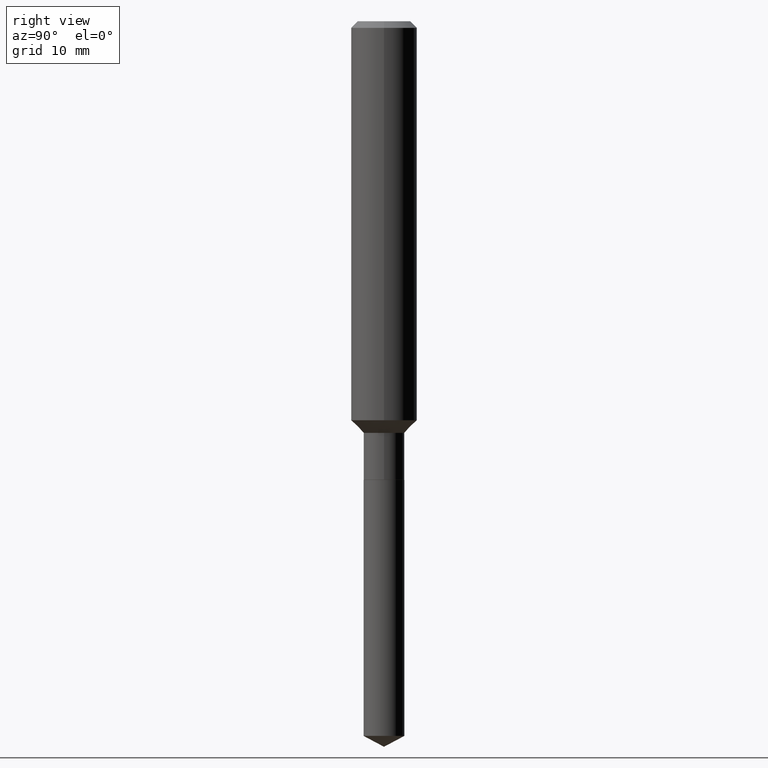
[diagram: clean part render]
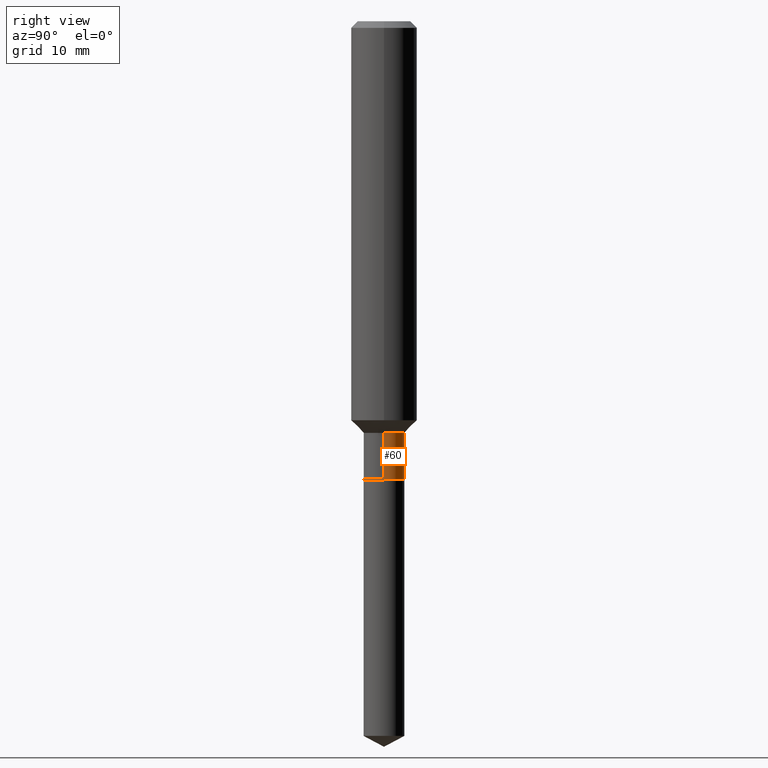
[diagram: same view with one face highlighted and labeled with its STEP entity id]
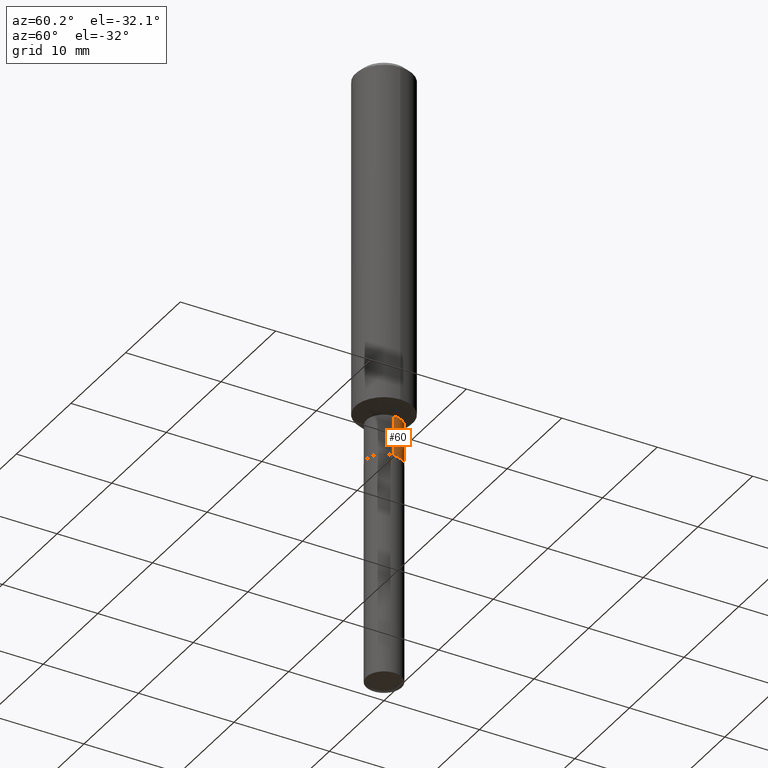
[diagram: same view with one face highlighted and labeled with its STEP entity id]
A machine part, right view. The second image highlights one B-rep face of the part: STEP entity #60.
A second angle (auxiliary view) of the same face is appended — the face is thin or edge-on in the first view.
In plain terms, the highlighted cylindrical surface (edge-blend (fillet) strip) has radius 1.8504 mm, axis along (-0, 0, 1).
Its self-contained STEP definition (entity closure, byte-faithful):
#28 = VERTEX_POINT ( 'NONE', #183 ) ;
#30 = ORIENTED_EDGE ( 'NONE', *, *, #263, .T. ) ;
#46 = DIRECTION ( 'NONE',  ( -2.445468806185136597E-29, 3.491481338843145583E-15, 1.000000000000000000 ) ) ;
#60 = ADVANCED_FACE ( 'NONE', ( #192 ), #190, .T. ) ;
#79 = AXIS2_PLACEMENT_3D ( 'NONE', #386, #46, #465 ) ;
#83 = DIRECTION ( 'NONE',  ( -2.445468806185136877E-29, 3.491481338843145188E-15, 1.000000000000000000 ) ) ;
#120 = CARTESIAN_POINT ( 'NONE',  ( 0.07284999999999998421, -5.087088310694443823E-16, 3.552294781167338121E-30 ) ) ;
#122 = CARTESIAN_POINT ( 'NONE',  ( 0.07284999999999998421, -5.655501472658124631E-15, -1.474099999999999744 ) ) ;
#129 = EDGE_CURVE ( 'NONE', #173, #401, #175, .T. ) ;
#138 = VERTEX_POINT ( 'NONE', #428 ) ;
#153 = CARTESIAN_POINT ( 'NONE',  ( 0.000000000000000000, 0.000000000000000000, 0.000000000000000000 ) ) ;
#159 = CARTESIAN_POINT ( 'NONE',  ( 3.604865567197509213E-29, -5.146792641588679559E-15, -1.474099999999999744 ) ) ;
#169 = LINE ( 'NONE', #247, #193 ) ;
#173 = VERTEX_POINT ( 'NONE', #122 ) ;
#175 = CIRCLE ( 'NONE', #451, 0.07284999999999998421 ) ;
#183 = CARTESIAN_POINT ( 'NONE',  ( -0.07284999999999999809, -4.920875524447791469E-15, -1.641199999999999770 ) ) ;
#190 = CYLINDRICAL_SURFACE ( 'NONE', #407, 0.07284999999999998421 ) ;
#192 = FACE_OUTER_BOUND ( 'NONE', #283, .T. ) ;
#193 = VECTOR ( 'NONE', #468, 39.37007874015748143 ) ;
#224 = DIRECTION ( 'NONE',  ( 1.000000000000000000, -6.982962677686265922E-15, 4.876176775795935232E-29 ) ) ;
#225 = ORIENTED_EDGE ( 'NONE', *, *, #129, .F. ) ;
#237 = DIRECTION ( 'NONE',  ( -2.445468806185136597E-29, 3.491481338843145583E-15, 1.000000000000000000 ) ) ;
#247 = CARTESIAN_POINT ( 'NONE',  ( -0.07284999999999998421, 5.176303830012328732E-16, -3.583444213250698428E-30 ) ) ;
#249 = ORIENTED_EDGE ( 'NONE', *, *, #355, .T. ) ;
#258 = DIRECTION ( 'NONE',  ( -2.445468806185136597E-29, 3.491481338843145583E-15, 1.000000000000000000 ) ) ;
#263 = EDGE_CURVE ( 'NONE', #138, #28, #286, .T. ) ;
#265 = EDGE_CURVE ( 'NONE', #138, #173, #384, .T. ) ;
#283 = EDGE_LOOP ( 'NONE', ( #30, #249, #225, #472 ) ) ;
#286 = CIRCLE ( 'NONE', #79, 0.07284999999999998421 ) ;
#307 = DIRECTION ( 'NONE',  ( 1.000000000000000000, -6.982962677686267499E-15, 0.000000000000000000 ) ) ;
#352 = VECTOR ( 'NONE', #83, 39.37007874015748143 ) ;
#355 = EDGE_CURVE ( 'NONE', #28, #401, #169, .T. ) ;
#384 = LINE ( 'NONE', #120, #352 ) ;
#386 = CARTESIAN_POINT ( 'NONE',  ( 4.013503404711045218E-29, -5.730219173309368928E-15, -1.641199999999999770 ) ) ;
#401 = VERTEX_POINT ( 'NONE', #476 ) ;
#407 = AXIS2_PLACEMENT_3D ( 'NONE', #153, #258, #224 ) ;
#428 = CARTESIAN_POINT ( 'NONE',  ( 0.07284999999999998421, -6.238928004378813212E-15, -1.641199999999999770 ) ) ;
#451 = AXIS2_PLACEMENT_3D ( 'NONE', #159, #237, #307 ) ;
#465 = DIRECTION ( 'NONE',  ( 1.000000000000000000, -6.982962677686267499E-15, 0.000000000000000000 ) ) ;
#468 = DIRECTION ( 'NONE',  ( -2.445468806185136877E-29, 3.491481338843145188E-15, 1.000000000000000000 ) ) ;
#472 = ORIENTED_EDGE ( 'NONE', *, *, #265, .F. ) ;
#476 = CARTESIAN_POINT ( 'NONE',  ( -0.07284999999999998421, -4.920875524447791469E-15, -1.474099999999999744 ) ) ;